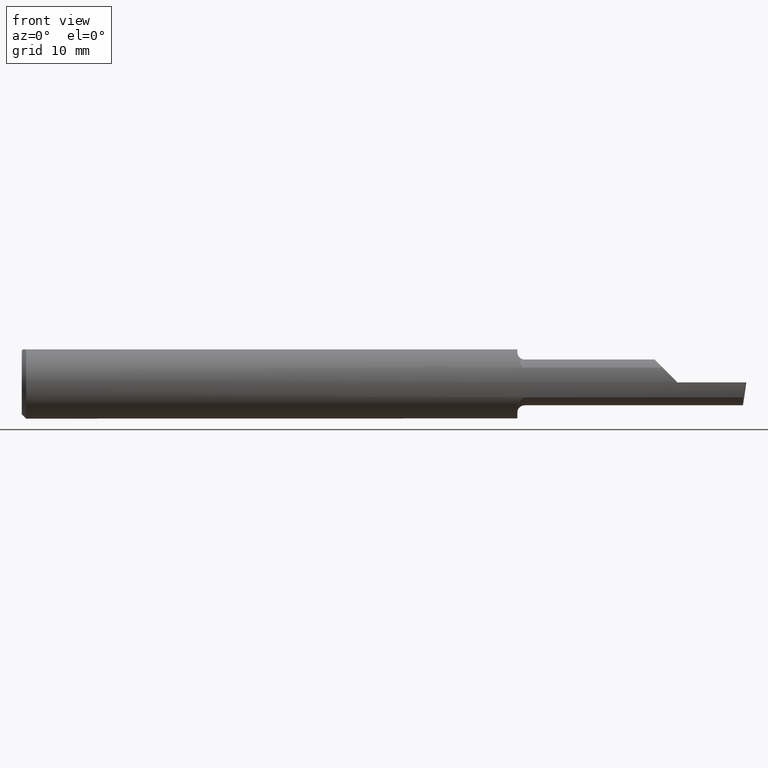
[diagram: clean part render]
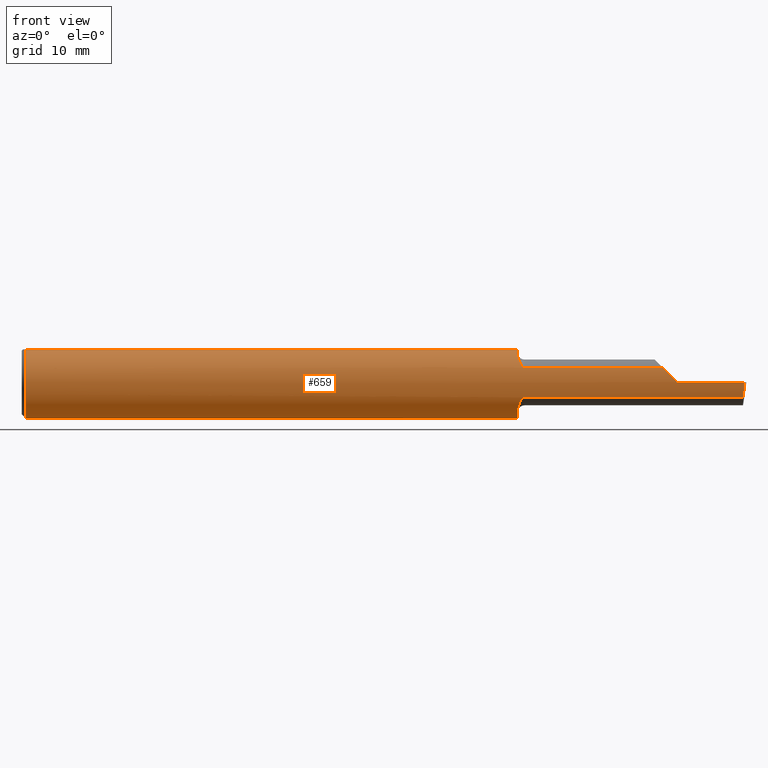
[diagram: same view with one face highlighted and labeled with its STEP entity id]
A machine part, front view. The second image highlights one B-rep face of the part: STEP entity #659.
In plain terms, the highlighted cylindrical surface (edge-blend (fillet) strip) has radius 3.1712 mm, axis along (-1, -0, -0).
Its self-contained STEP definition (entity closure, byte-faithful):
#14 = VERTEX_POINT ( 'NONE', #938 ) ;
#22 = VECTOR ( 'NONE', #664, 39.37007874015748143 ) ;
#24 = VECTOR ( 'NONE', #165, 39.37007874015748143 ) ;
#31 = CARTESIAN_POINT ( 'NONE',  ( 1.710432183272953210, -0.08132552481649779619, 0.09493149319044985601 ) ) ;
#38 = CARTESIAN_POINT ( 'NONE',  ( 2.211293941458323253, -0.1137079387186629154, 0.05155605854167673308 ) ) ;
#41 = CARTESIAN_POINT ( 'NONE',  ( 1.724874683682055876, -0.1106868914269829030, 0.05780615586404034417 ) ) ;
#42 = CIRCLE ( 'NONE', #901, 0.1248500000000000026 ) ;
#55 = CARTESIAN_POINT ( 'NONE',  ( 1.713322063381566229, -0.09442429944196306657, 0.08190292949107196019 ) ) ;
#58 = ORIENTED_EDGE ( 'NONE', *, *, #525, .F. ) ;
#59 = DIRECTION ( 'NONE',  ( 1.000000000000000000, 0.000000000000000000, 0.000000000000000000 ) ) ;
#60 = CARTESIAN_POINT ( 'NONE',  ( 1.709999999999999964, -0.07122883008356545309, -0.1025376821706369679 ) ) ;
#84 = CARTESIAN_POINT ( 'NONE',  ( 2.500000000000000000, 0.05124158467494929065, 0.1138500000000000068 ) ) ;
#91 = VERTEX_POINT ( 'NONE', #657 ) ;
#95 = CARTESIAN_POINT ( 'NONE',  ( 1.710423630387103655, -0.08124759910979217903, -0.09499742658102146298 ) ) ;
#103 = CARTESIAN_POINT ( 'NONE',  ( 2.000000000000000000, -0.1137079387186629154, 0.05155605854167669838 ) ) ;
#114 = CIRCLE ( 'NONE', #281, 0.1248500000000000026 ) ;
#121 = EDGE_CURVE ( 'NONE', #392, #949, #447, .T. ) ;
#133 = CARTESIAN_POINT ( 'NONE',  ( 2.260000000000000231, -0.1248174667264161514, 0.002850000000000250770 ) ) ;
#134 = DIRECTION ( 'NONE',  ( 0.000000000000000000, 0.000000000000000000, 1.000000000000000000 ) ) ;
#159 = CARTESIAN_POINT ( 'NONE',  ( 2.489267570196207480, -0.1137079387186629154, -0.05155605854167671920 ) ) ;
#161 = CARTESIAN_POINT ( 'NONE',  ( 1.716722897001411230, -0.1018927124558845071, 0.07240105891979374542 ) ) ;
#163 = ORIENTED_EDGE ( 'NONE', *, *, #740, .T. ) ;
#165 = DIRECTION ( 'NONE',  ( -1.000000000000000000, -0.000000000000000000, -0.000000000000000000 ) ) ;
#173 = ORIENTED_EDGE ( 'NONE', *, *, #121, .T. ) ;
#178 = ORIENTED_EDGE ( 'NONE', *, *, #287, .T. ) ;
#179 = LINE ( 'NONE', #84, #650 ) ;
#180 = CARTESIAN_POINT ( 'NONE',  ( 1.709999999999999964, -0.07122883008356545309, -0.1025376821706369679 ) ) ;
#202 = CARTESIAN_POINT ( 'NONE',  ( 1.709999999999999964, 0.000000000000000000, 0.000000000000000000 ) ) ;
#208 = AXIS2_PLACEMENT_3D ( 'NONE', #636, #1220, #747 ) ;
#209 = DIRECTION ( 'NONE',  ( 1.000000000000000000, -0.000000000000000000, -0.000000000000000000 ) ) ;
#217 = CARTESIAN_POINT ( 'NONE',  ( 2.489267570196207480, -0.1137079387186629154, -0.05155605854167671920 ) ) ;
#234 = CARTESIAN_POINT ( 'NONE',  ( 2.500000000000000000, 0.000000000000000000, 0.000000000000000000 ) ) ;
#240 = CYLINDRICAL_SURFACE ( 'NONE', #298, 0.1248500000000000026 ) ;
#241 = CARTESIAN_POINT ( 'NONE',  ( 1.733387820938878665, -0.1137079387186629015, 0.05155605854167669838 ) ) ;
#281 = AXIS2_PLACEMENT_3D ( 'NONE', #791, #209, #513 ) ;
#287 = EDGE_CURVE ( 'NONE', #767, #576, #670, .T. ) ;
#298 = AXIS2_PLACEMENT_3D ( 'NONE', #234, #535, #134 ) ;
#310 = CARTESIAN_POINT ( 'NONE',  ( 1.709999999999999964, -0.07122883008356545309, 0.1025376821706369818 ) ) ;
#316 = CIRCLE ( 'NONE', #208, 0.1248500000000000026 ) ;
#346 = CARTESIAN_POINT ( 'NONE',  ( 2.243124547623006393, -0.1244321437380891127, 0.01972545237699374274 ) ) ;
#348 = EDGE_CURVE ( 'NONE', #14, #820, #994, .T. ) ;
#351 = CARTESIAN_POINT ( 'NONE',  ( 1.723207090333530589, -0.1093984659698930689, 0.06022643808600468274 ) ) ;
#377 = CARTESIAN_POINT ( 'NONE',  ( 1.729139446731721375, -0.1127393959439296628, -0.05364788444009099128 ) ) ;
#392 = VERTEX_POINT ( 'NONE', #717 ) ;
#404 = VECTOR ( 'NONE', #1181, 39.37007874015748143 ) ;
#406 = CIRCLE ( 'NONE', #1084, 0.1248500000000000026 ) ;
#420 = CARTESIAN_POINT ( 'NONE',  ( 0.01499999999999915637, 0.000000000000000000, 0.000000000000000000 ) ) ;
#427 = CARTESIAN_POINT ( 'NONE',  ( 1.709999999999999742, -0.07641459200272589236, 0.09893534060435293931 ) ) ;
#441 = CARTESIAN_POINT ( 'NONE',  ( 1.729178174055183481, -0.1127518981013768962, 0.05362138475326224535 ) ) ;
#447 = B_SPLINE_CURVE_WITH_KNOTS ( 'NONE', 3,
 ( #550, #241, #1236, #441, #1137, #41, #351, #947, #161, #55, #923, #31, #427, #482 ),
 .UNSPECIFIED., .F., .F.,
 ( 4, 2, 2, 2, 2, 2, 4 ),
 ( 0.000000000000000000, 0.0001204673166543595501, 0.0002409346333087191002, 0.0004818692666174390678, 0.0009637385332348882188, 0.001445607799852337370, 0.001927477066469786195 ),
 .UNSPECIFIED. ) ;
#481 = CARTESIAN_POINT ( 'NONE',  ( 1.727994774632202191, -0.1122674110454139479, -0.05463452566123327969 ) ) ;
#482 = CARTESIAN_POINT ( 'NONE',  ( 1.709999999999999964, -0.07122883008356545309, 0.1025376821706369818 ) ) ;
#490 = CARTESIAN_POINT ( 'NONE',  ( 1.713319739580839940, -0.09441777840403026145, -0.08191053717994586925 ) ) ;
#496 = VERTEX_POINT ( 'NONE', #604 ) ;
#513 = DIRECTION ( 'NONE',  ( 0.000000000000000000, 0.000000000000000000, -1.000000000000000000 ) ) ;
#517 = CARTESIAN_POINT ( 'NONE',  ( 0.01499999999999915637, 0.05124158467494929065, 0.1138500000000000068 ) ) ;
#524 = DIRECTION ( 'NONE',  ( 1.000000000000000000, -0.000000000000000000, -0.000000000000000000 ) ) ;
#525 = EDGE_CURVE ( 'NONE', #767, #949, #316, .T. ) ;
#535 = DIRECTION ( 'NONE',  ( -1.000000000000000000, -0.000000000000000000, -0.000000000000000000 ) ) ;
#547 = ORIENTED_EDGE ( 'NONE', *, *, #1235, .F. ) ;
#550 = CARTESIAN_POINT ( 'NONE',  ( 1.734999999999999876, -0.1137079387186629154, 0.05155605854167669838 ) ) ;
#571 = CARTESIAN_POINT ( 'NONE',  ( 1.718829174467129128, -0.1051947416025568877, -0.06747609159119541400 ) ) ;
#576 = VERTEX_POINT ( 'NONE', #827 ) ;
#586 = LINE ( 'NONE', #662, #24 ) ;
#602 = DIRECTION ( 'NONE',  ( 1.000000000000000000, 0.000000000000000000, 0.000000000000000000 ) ) ;
#604 = CARTESIAN_POINT ( 'NONE',  ( 1.709999999999999964, 0.05124158467494929065, 0.1138500000000000068 ) ) ;
#624 = ORIENTED_EDGE ( 'NONE', *, *, #904, .T. ) ;
#636 = CARTESIAN_POINT ( 'NONE',  ( 1.709999999999999964, 0.000000000000000000, 0.000000000000000000 ) ) ;
#650 = VECTOR ( 'NONE', #59, 39.37007874015748143 ) ;
#657 = CARTESIAN_POINT ( 'NONE',  ( 0.01499999999999915637, 0.000000000000000000, -0.1248500000000000026 ) ) ;
#659 = ADVANCED_FACE ( 'NONE', ( #1119 ), #240, .T. ) ;
#660 = VERTEX_POINT ( 'NONE', #38 ) ;
#662 = CARTESIAN_POINT ( 'NONE',  ( 2.000000000000000000, -0.1137079387186629154, -0.05155605854167669838 ) ) ;
#664 = DIRECTION ( 'NONE',  ( -1.000000000000000000, -0.000000000000000000, -0.000000000000000000 ) ) ;
#669 = ORIENTED_EDGE ( 'NONE', *, *, #800, .T. ) ;
#670 = LINE ( 'NONE', #859, #22 ) ;
#674 = ORIENTED_EDGE ( 'NONE', *, *, #1129, .T. ) ;
#692 = EDGE_CURVE ( 'NONE', #695, #803, #586, .T. ) ;
#694 = B_SPLINE_CURVE_WITH_KNOTS ( 'NONE', 3,
 ( #60, #974, #95, #951, #490, #1062, #571, #1256, #1049, #481, #377, #1248, #1072, #886 ),
 .UNSPECIFIED., .F., .F.,
 ( 4, 2, 2, 2, 2, 2, 4 ),
 ( 0.000000000000000000, 0.0004746844550168761848, 0.0009493689100337523697, 0.001424053365050629259, 0.001661395592559072529, 0.001780066706313293947, 0.001898737820067515365 ),
 .UNSPECIFIED. ) ;
#695 = VERTEX_POINT ( 'NONE', #159 ) ;
#716 = VERTEX_POINT ( 'NONE', #180 ) ;
#717 = CARTESIAN_POINT ( 'NONE',  ( 1.734999999999999876, -0.1137079387186629154, 0.05155605854167669838 ) ) ;
#721 = DIRECTION ( 'NONE',  ( -1.000000000000000000, -0.000000000000000000, -0.000000000000000000 ) ) ;
#740 = EDGE_CURVE ( 'NONE', #716, #803, #694, .T. ) ;
#745 = CARTESIAN_POINT ( 'NONE',  ( 2.226667373999930977, -0.1206783718918706116, 0.03618262600006917629 ) ) ;
#747 = DIRECTION ( 'NONE',  ( 0.000000000000000000, 0.000000000000000000, -1.000000000000000000 ) ) ;
#748 =( BOUNDED_CURVE ( )  B_SPLINE_CURVE ( 3, ( #217, #1007, #909, #987 ),
 .UNSPECIFIED., .F., .T. ) 
 B_SPLINE_CURVE_WITH_KNOTS ( ( 4, 4 ),
 ( 0.9334613761364743967, 1.359145557743723698 ),
 .UNSPECIFIED. ) 
 CURVE ( )  GEOMETRIC_REPRESENTATION_ITEM ( )  RATIONAL_B_SPLINE_CURVE ( ( 1.000000000000000000, 0.9849563356983243034, 0.9849563356983243034, 1.000000000000000000 ) ) 
 REPRESENTATION_ITEM ( '' )  );
#751 = VECTOR ( 'NONE', #721, 39.37007874015748143 ) ;
#753 = CARTESIAN_POINT ( 'NONE',  ( 1.709999999999999964, -0.05124158467494929065, 0.1138500000000000068 ) ) ;
#767 = VERTEX_POINT ( 'NONE', #753 ) ;
#773 = CARTESIAN_POINT ( 'NONE',  ( 2.260000000000000231, 0.000000000000000000, 0.000000000000000000 ) ) ;
#777 = AXIS2_PLACEMENT_3D ( 'NONE', #202, #602, #996 ) ;
#787 =( BOUNDED_CURVE ( )  B_SPLINE_CURVE ( 3, ( #133, #346, #745, #1135 ),
 .UNSPECIFIED., .F., .F. ) 
 B_SPLINE_CURVE_WITH_KNOTS ( ( 4, 4 ),
 ( 4.735218356241675863, 5.138073161991937532 ),
 .UNSPECIFIED. ) 
 CURVE ( )  GEOMETRIC_REPRESENTATION_ITEM ( )  RATIONAL_B_SPLINE_CURVE ( ( 1.000000000000000000, 0.9865213322208084001, 0.9865213322208084001, 1.000000000000000000 ) ) 
 REPRESENTATION_ITEM ( '' )  );
#791 = CARTESIAN_POINT ( 'NONE',  ( 0.01499999999999915637, 0.000000000000000000, 0.000000000000000000 ) ) ;
#800 = EDGE_CURVE ( 'NONE', #695, #14, #748, .T. ) ;
#803 = VERTEX_POINT ( 'NONE', #1002 ) ;
#805 = CARTESIAN_POINT ( 'NONE',  ( 2.260000000000000231, -0.1248500000000000026, -3.414809992080329023E-17 ) ) ;
#810 = CARTESIAN_POINT ( 'NONE',  ( 2.500000000000000000, -0.1248499999999999888, -3.414809992080329023E-17 ) ) ;
#820 = VERTEX_POINT ( 'NONE', #805 ) ;
#821 = DIRECTION ( 'NONE',  ( 0.000000000000000000, 0.000000000000000000, -1.000000000000000000 ) ) ;
#823 = EDGE_LOOP ( 'NONE', ( #1064, #669, #842, #547, #1285, #1176, #173, #58, #178, #674, #624, #895, #865, #163 ) ) ;
#827 = CARTESIAN_POINT ( 'NONE',  ( 0.01499999999999915637, -0.05124158467494929065, 0.1138500000000000068 ) ) ;
#842 = ORIENTED_EDGE ( 'NONE', *, *, #348, .T. ) ;
#849 = EDGE_CURVE ( 'NONE', #392, #660, #1197, .T. ) ;
#859 = CARTESIAN_POINT ( 'NONE',  ( 2.500000000000000000, -0.05124158467494929065, 0.1138500000000000068 ) ) ;
#865 = ORIENTED_EDGE ( 'NONE', *, *, #940, .F. ) ;
#885 = VERTEX_POINT ( 'NONE', #517 ) ;
#886 = CARTESIAN_POINT ( 'NONE',  ( 1.734999999999999876, -0.1137079387186629154, -0.05155605854167669838 ) ) ;
#895 = ORIENTED_EDGE ( 'NONE', *, *, #1269, .T. ) ;
#901 = AXIS2_PLACEMENT_3D ( 'NONE', #773, #1060, #1047 ) ;
#904 = EDGE_CURVE ( 'NONE', #91, #885, #114, .T. ) ;
#909 = CARTESIAN_POINT ( 'NONE',  ( 2.493112118871952276, -0.1248500000000000304, -0.01785064074776132950 ) ) ;
#923 = CARTESIAN_POINT ( 'NONE',  ( 1.712097932358489727, -0.09031588916230275099, 0.08642262175420210857 ) ) ;
#938 = CARTESIAN_POINT ( 'NONE',  ( 2.495303901958002779, -0.1248500000000000026, 3.414809992080329023E-17 ) ) ;
#940 = EDGE_CURVE ( 'NONE', #716, #496, #1140, .T. ) ;
#947 = CARTESIAN_POINT ( 'NONE',  ( 1.718851736067403824, -0.1052154413536967315, 0.06743987103427501184 ) ) ;
#949 = VERTEX_POINT ( 'NONE', #310 ) ;
#951 = CARTESIAN_POINT ( 'NONE',  ( 1.712075972147771630, -0.09022855039435348501, -0.08651295921337841255 ) ) ;
#974 = CARTESIAN_POINT ( 'NONE',  ( 1.710000000000000631, -0.07641892655109838728, -0.09893232956682049273 ) ) ;
#987 = CARTESIAN_POINT ( 'NONE',  ( 2.495303901958002779, -0.1248500000000000026, 3.414809992080329023E-17 ) ) ;
#994 = LINE ( 'NONE', #810, #751 ) ;
#996 = DIRECTION ( 'NONE',  ( 0.000000000000000000, 0.000000000000000000, -1.000000000000000000 ) ) ;
#1002 = CARTESIAN_POINT ( 'NONE',  ( 1.734999999999999876, -0.1137079387186629154, -0.05155605854167669838 ) ) ;
#1007 = CARTESIAN_POINT ( 'NONE',  ( 2.491069276449056957, -0.1210792537318629847, -0.03529847292505413486 ) ) ;
#1047 = DIRECTION ( 'NONE',  ( 0.000000000000000000, 0.000000000000000000, -1.000000000000000000 ) ) ;
#1049 = CARTESIAN_POINT ( 'NONE',  ( 1.724891557169639489, -0.1106952600441790530, -0.05778930534297094246 ) ) ;
#1060 = DIRECTION ( 'NONE',  ( 1.000000000000000000, -0.000000000000000000, 0.000000000000000000 ) ) ;
#1062 = CARTESIAN_POINT ( 'NONE',  ( 1.716720276352116104, -0.1018883731564566020, -0.07240726755920651181 ) ) ;
#1064 = ORIENTED_EDGE ( 'NONE', *, *, #692, .F. ) ;
#1068 = CARTESIAN_POINT ( 'NONE',  ( 2.260000000000000231, -0.1248174667264161514, 0.002850000000000250770 ) ) ;
#1072 = CARTESIAN_POINT ( 'NONE',  ( 1.733384674804965497, -0.1137079387186629015, -0.05155605854167667063 ) ) ;
#1084 = AXIS2_PLACEMENT_3D ( 'NONE', #420, #524, #821 ) ;
#1092 = EDGE_CURVE ( 'NONE', #1194, #660, #787, .T. ) ;
#1119 = FACE_OUTER_BOUND ( 'NONE', #823, .T. ) ;
#1129 = EDGE_CURVE ( 'NONE', #576, #91, #406, .T. ) ;
#1135 = CARTESIAN_POINT ( 'NONE',  ( 2.211293941458323253, -0.1137079387186629154, 0.05155605854167673308 ) ) ;
#1137 = CARTESIAN_POINT ( 'NONE',  ( 1.728004996570724483, -0.1122724996918369744, 0.05462428567343530217 ) ) ;
#1140 = CIRCLE ( 'NONE', #777, 0.1248500000000000026 ) ;
#1176 = ORIENTED_EDGE ( 'NONE', *, *, #849, .F. ) ;
#1181 = DIRECTION ( 'NONE',  ( 1.000000000000000000, 0.000000000000000000, 0.000000000000000000 ) ) ;
#1194 = VERTEX_POINT ( 'NONE', #1068 ) ;
#1197 = LINE ( 'NONE', #103, #404 ) ;
#1220 = DIRECTION ( 'NONE',  ( 1.000000000000000000, 0.000000000000000000, 0.000000000000000000 ) ) ;
#1235 = EDGE_CURVE ( 'NONE', #1194, #820, #42, .T. ) ;
#1236 = CARTESIAN_POINT ( 'NONE',  ( 1.731851412320271733, -0.1134707676420270567, 0.05208289852772935574 ) ) ;
#1248 = CARTESIAN_POINT ( 'NONE',  ( 1.731841195498449837, -0.1134700705846414248, -0.05208464249868659246 ) ) ;
#1256 = CARTESIAN_POINT ( 'NONE',  ( 1.723222967173717368, -0.1094132292718230925, -0.06020071664543995282 ) ) ;
#1269 = EDGE_CURVE ( 'NONE', #885, #496, #179, .T. ) ;
#1285 = ORIENTED_EDGE ( 'NONE', *, *, #1092, .T. ) ;